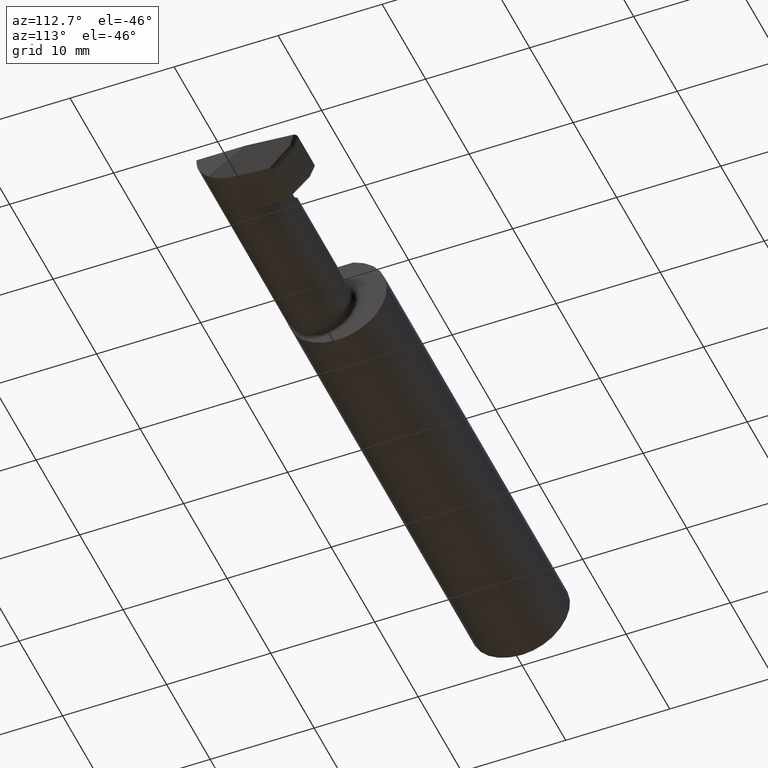
[diagram: clean part render]
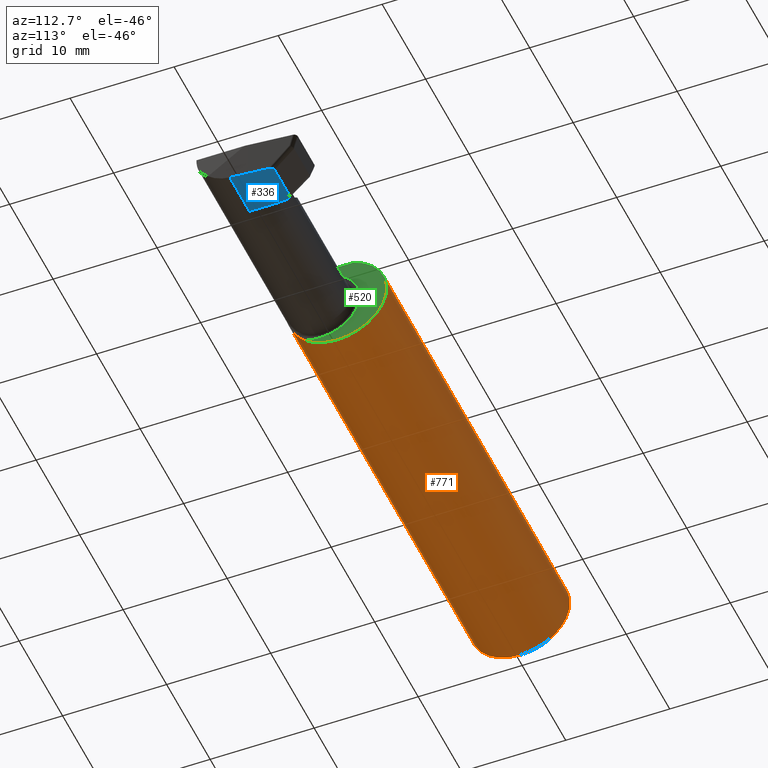
[diagram: same view with three faces highlighted in distinct colors, each labeled with its STEP entity id]
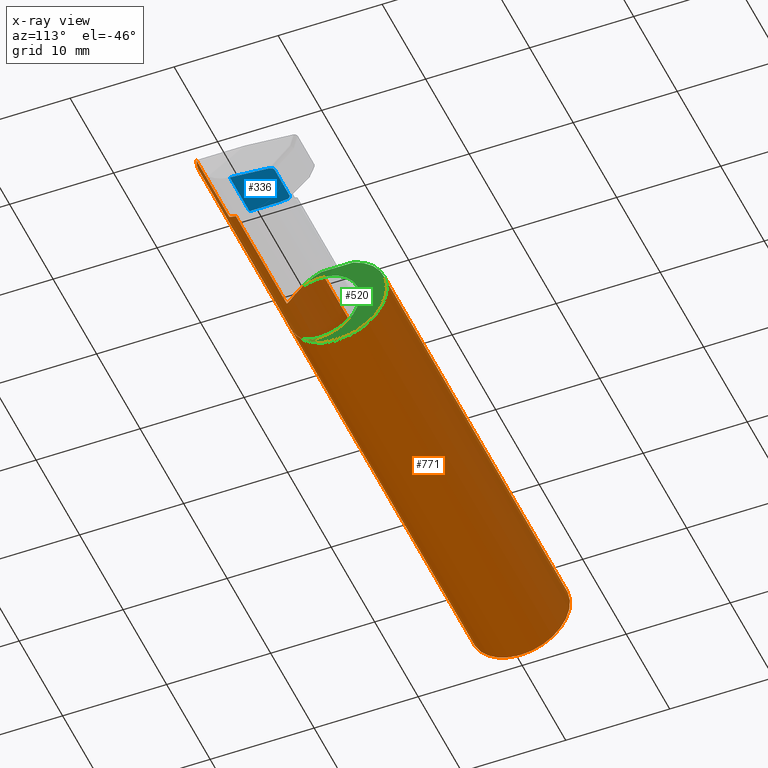
[diagram: x-ray of the same camera — body ghosted, the three highlighted faces saturated]
A machine part, auxiliary view with three faces highlighted in distinct colors.
The next image is the same camera in x-ray (body ghosted, the three faces saturated) — at least one of them is partly hidden behind the body in this view.
Their STEP definitions:

[orange] entity #771 — the highlighted cylindrical surface (partial cylindrical patch) has radius 4.7587 mm, axis along (-1, -0, -0).
#4 = DIRECTION ( 'NONE',  ( -1.000000000000000000, -0.000000000000000000, -0.000000000000000000 ) ) ;
#7 = CARTESIAN_POINT ( 'NONE',  ( 1.985000000000000320, -0.1816805279265493456, -0.04574066322573741572 ) ) ;
#15 = CARTESIAN_POINT ( 'NONE',  ( 1.687714244929360730, -0.1775741566219413425, -0.05988189962716809756 ) ) ;
#17 = VERTEX_POINT ( 'NONE', #591 ) ;
#18 = DIRECTION ( 'NONE',  ( 0.000000000000000000, 0.000000000000000000, -1.000000000000000000 ) ) ;
#20 = DIRECTION ( 'NONE',  ( 1.000000000000000000, 0.000000000000000000, 0.000000000000000000 ) ) ;
#22 = ORIENTED_EDGE ( 'NONE', *, *, #858, .T. ) ;
#50 = CARTESIAN_POINT ( 'NONE',  ( 1.695736562170379491, -0.1815122776378731151, 0.04641090218153610947 ) ) ;
#60 = EDGE_CURVE ( 'NONE', #551, #63, #332, .T. ) ;
#61 = EDGE_CURVE ( 'NONE', #163, #865, #557, .T. ) ;
#63 = VERTEX_POINT ( 'NONE', #937 ) ;
#69 = ORIENTED_EDGE ( 'NONE', *, *, #515, .F. ) ;
#74 = CARTESIAN_POINT ( 'NONE',  ( 2.200000000000000178, -0.1873499999999999888, -3.979970649922726459E-17 ) ) ;
#78 = CARTESIAN_POINT ( 'NONE',  ( 0.01499999999999970281, 0.000000000000000000, 0.000000000000000000 ) ) ;
#86 = DIRECTION ( 'NONE',  ( 0.000000000000000000, 0.000000000000000000, 1.000000000000000000 ) ) ;
#107 = DIRECTION ( 'NONE',  ( 1.000000000000000000, -0.000000000000000000, -0.000000000000000000 ) ) ;
#113 = CARTESIAN_POINT ( 'NONE',  ( 1.680165066739708779, -0.1674210122097407327, 0.08457025362359742171 ) ) ;
#118 = CARTESIAN_POINT ( 'NONE',  ( 1.687714394919973104, -0.1775724809961185535, 0.05988543762226174877 ) ) ;
#126 = CARTESIAN_POINT ( 'NONE',  ( 1.697999999999999954, -0.1816805279265493456, 0.04574066322573741572 ) ) ;
#128 = CARTESIAN_POINT ( 'NONE',  ( 1.673000000000000265, 0.000000000000000000, 0.000000000000000000 ) ) ;
#145 = ORIENTED_EDGE ( 'NONE', *, *, #705, .T. ) ;
#162 = EDGE_CURVE ( 'NONE', #17, #838, #464, .T. ) ;
#163 = VERTEX_POINT ( 'NONE', #405 ) ;
#164 = CARTESIAN_POINT ( 'NONE',  ( 1.694060832777569248, -0.1811109074190623835, -0.04795319073302588969 ) ) ;
#167 = VECTOR ( 'NONE', #706, 39.37007874015748143 ) ;
#168 = EDGE_CURVE ( 'NONE', #208, #551, #747, .T. ) ;
#179 = LINE ( 'NONE', #259, #511 ) ;
#184 = DIRECTION ( 'NONE',  ( 0.000000000000000000, 0.000000000000000000, -1.000000000000000000 ) ) ;
#190 = DIRECTION ( 'NONE',  ( 0.000000000000000000, 0.000000000000000000, -1.000000000000000000 ) ) ;
#197 = AXIS2_PLACEMENT_3D ( 'NONE', #276, #667, #184 ) ;
#208 = VERTEX_POINT ( 'NONE', #895 ) ;
#209 = CARTESIAN_POINT ( 'NONE',  ( 2.155609336774261919, -0.1816805279265492068, 0.04574066322573761695 ) ) ;
#216 = CIRCLE ( 'NONE', #314, 0.1873499999999999888 ) ;
#234 = CARTESIAN_POINT ( 'NONE',  ( 2.500000000000000000, -0.1873499999999999610, -3.979970649922724610E-17 ) ) ;
#259 = CARTESIAN_POINT ( 'NONE',  ( 1.985000000000000320, -0.1816805279265493456, 0.04574066322573741572 ) ) ;
#262 = CARTESIAN_POINT ( 'NONE',  ( 1.686243155597560328, -0.1761103983034254528, -0.06406878988066036507 ) ) ;
#271 = CARTESIAN_POINT ( 'NONE',  ( 1.686238439611428275, -0.1761054551189536743, 0.06408236932159687427 ) ) ;
#276 = CARTESIAN_POINT ( 'NONE',  ( 1.673000000000000265, 0.000000000000000000, 0.000000000000000000 ) ) ;
#304 = VERTEX_POINT ( 'NONE', #74 ) ;
#314 = AXIS2_PLACEMENT_3D ( 'NONE', #78, #107, #954 ) ;
#318 = DIRECTION ( 'NONE',  ( 0.000000000000000000, 0.000000000000000000, -1.000000000000000000 ) ) ;
#319 = VERTEX_POINT ( 'NONE', #532 ) ;
#326 = CARTESIAN_POINT ( 'NONE',  ( 1.673000000000000265, 0.06039039658753697637, 0.1773499999999999799 ) ) ;
#329 = CARTESIAN_POINT ( 'NONE',  ( 1.695757828336039941, -0.1815159194173288082, -0.04639655467506109687 ) ) ;
#332 = LINE ( 'NONE', #7, #349 ) ;
#334 = CARTESIAN_POINT ( 'NONE',  ( 1.673000000000000265, -0.1358364408402822077, -0.1293653927267006953 ) ) ;
#344 = CARTESIAN_POINT ( 'NONE',  ( 1.693346106735897694, -0.1808597239496785580, 0.04889540865154970439 ) ) ;
#346 = AXIS2_PLACEMENT_3D ( 'NONE', #714, #568, #86 ) ;
#349 = VECTOR ( 'NONE', #864, 39.37007874015748143 ) ;
#351 = CARTESIAN_POINT ( 'NONE',  ( 1.673507463316945554, -0.1420253514571687414, 0.1225297815952122588 ) ) ;
#355 = VERTEX_POINT ( 'NONE', #711 ) ;
#356 = CARTESIAN_POINT ( 'NONE',  ( 2.200000000000000178, -0.1873451360457484560, 0.001349999999999087824 ) ) ;
#381 = VERTEX_POINT ( 'NONE', #959 ) ;
#384 = VERTEX_POINT ( 'NONE', #940 ) ;
#402 = CARTESIAN_POINT ( 'NONE',  ( 0.01499999999999970281, 0.000000000000000000, 0.000000000000000000 ) ) ;
#405 = CARTESIAN_POINT ( 'NONE',  ( 0.01499999999999970281, 0.06039039658753697637, 0.1773499999999999799 ) ) ;
#417 = CARTESIAN_POINT ( 'NONE',  ( 1.676681773380125362, -0.1584047100801144747, -0.1004548108586795913 ) ) ;
#426 = CARTESIAN_POINT ( 'NONE',  ( 1.676710439827054033, -0.1584902558649207982, 0.1003133187725623182 ) ) ;
#433 = ORIENTED_EDGE ( 'NONE', *, *, #162, .T. ) ;
#438 = CARTESIAN_POINT ( 'NONE',  ( 1.696803717416865309, -0.1816805279265492623, 0.04574066322573741572 ) ) ;
#441 = AXIS2_PLACEMENT_3D ( 'NONE', #684, #1004, #772 ) ;
#444 = ORIENTED_EDGE ( 'NONE', *, *, #60, .F. ) ;
#445 = CARTESIAN_POINT ( 'NONE',  ( 2.170144162329409543, -0.1853398774911412805, 0.03120583767058981300 ) ) ;
#457 = CARTESIAN_POINT ( 'NONE',  ( 1.673000000000000265, -0.1290791507268553850, -0.1357887894770173631 ) ) ;
#464 = LINE ( 'NONE', #690, #692 ) ;
#474 = ORIENTED_EDGE ( 'NONE', *, *, #999, .T. ) ;
#475 = CARTESIAN_POINT ( 'NONE',  ( 1.696817590302756917, -0.1816805279265500950, -0.04574066322574464605 ) ) ;
#510 = AXIS2_PLACEMENT_3D ( 'NONE', #128, #903, #190 ) ;
#511 = VECTOR ( 'NONE', #702, 39.37007874015748143 ) ;
#515 = EDGE_CURVE ( 'NONE', #17, #319, #945, .T. ) ;
#527 = EDGE_CURVE ( 'NONE', #567, #355, #861, .T. ) ;
#532 = CARTESIAN_POINT ( 'NONE',  ( 1.673000000000000265, -0.1290791507268553850, 0.1357887894770173631 ) ) ;
#546 = DIRECTION ( 'NONE',  ( -1.000000000000000000, -0.000000000000000000, -0.000000000000000000 ) ) ;
#551 = VERTEX_POINT ( 'NONE', #972 ) ;
#552 = CARTESIAN_POINT ( 'NONE',  ( 1.691477950225052984, -0.1800855208038182886, -0.05170170159514017594 ) ) ;
#553 = CARTESIAN_POINT ( 'NONE',  ( 2.500000000000000000, 0.06039039658753697637, 0.1773499999999999799 ) ) ;
#557 = LINE ( 'NONE', #553, #167 ) ;
#559 = CARTESIAN_POINT ( 'NONE',  ( 1.673000000000000265, -0.1290791507268553850, -0.1357887894770173631 ) ) ;
#565 = AXIS2_PLACEMENT_3D ( 'NONE', #712, #20, #318 ) ;
#567 = VERTEX_POINT ( 'NONE', #832 ) ;
#568 = DIRECTION ( 'NONE',  ( -1.000000000000000000, -0.000000000000000000, -0.000000000000000000 ) ) ;
#578 = CARTESIAN_POINT ( 'NONE',  ( 1.672999999999999821, -0.1358297317783274394, 0.1293717702783574175 ) ) ;
#591 = CARTESIAN_POINT ( 'NONE',  ( 1.673000000000000265, -0.06039039658755174234, 0.1773499999999999799 ) ) ;
#594 = CARTESIAN_POINT ( 'NONE',  ( 2.185011993843769318, -0.1872371331974334585, 0.01633800615622983676 ) ) ;
#613 = EDGE_LOOP ( 'NONE', ( #444, #683, #145, #792, #904, #992, #474, #69, #433, #804, #725, #685, #756, #22 ) ) ;
#627 = CARTESIAN_POINT ( 'NONE',  ( 1.690471878265903616, -0.1794901087543954721, -0.05373940346778428162 ) ) ;
#636 = CARTESIAN_POINT ( 'NONE',  ( 1.675343370590518965, -0.1532864254495101830, -0.1081069623110098021 ) ) ;
#640 = CARTESIAN_POINT ( 'NONE',  ( 1.673508120371015595, -0.1420153276512569340, -0.1225377094583886411 ) ) ;
#656 = VERTEX_POINT ( 'NONE', #457 ) ;
#664 = CIRCLE ( 'NONE', #197, 0.1873499999999999888 ) ;
#667 = DIRECTION ( 'NONE',  ( 1.000000000000000000, 0.000000000000000000, 0.000000000000000000 ) ) ;
#683 = ORIENTED_EDGE ( 'NONE', *, *, #168, .F. ) ;
#684 = CARTESIAN_POINT ( 'NONE',  ( 2.500000000000000000, 0.000000000000000000, 0.000000000000000000 ) ) ;
#685 = ORIENTED_EDGE ( 'NONE', *, *, #61, .T. ) ;
#690 = CARTESIAN_POINT ( 'NONE',  ( 2.500000000000000000, -0.06039039658753697637, 0.1773499999999999799 ) ) ;
#692 = VECTOR ( 'NONE', #546, 39.37007874015748143 ) ;
#694 = LINE ( 'NONE', #234, #752 ) ;
#702 = DIRECTION ( 'NONE',  ( 1.000000000000000000, 0.000000000000000000, 0.000000000000000000 ) ) ;
#705 = EDGE_CURVE ( 'NONE', #208, #304, #694, .T. ) ;
#706 = DIRECTION ( 'NONE',  ( 1.000000000000000000, 0.000000000000000000, 0.000000000000000000 ) ) ;
#708 = DIRECTION ( 'NONE',  ( 1.000000000000000000, -0.000000000000000000, -0.000000000000000000 ) ) ;
#711 = CARTESIAN_POINT ( 'NONE',  ( 2.155609336774261919, -0.1816805279265492068, 0.04574066322573761695 ) ) ;
#712 = CARTESIAN_POINT ( 'NONE',  ( 2.500000000000000000, 0.000000000000000000, 0.000000000000000000 ) ) ;
#714 = CARTESIAN_POINT ( 'NONE',  ( 2.200000000000000178, 0.000000000000000000, 0.000000000000000000 ) ) ;
#722 = CARTESIAN_POINT ( 'NONE',  ( 1.680157939458079452, -0.1674139084628467333, -0.08459198811596618794 ) ) ;
#725 = ORIENTED_EDGE ( 'NONE', *, *, #863, .T. ) ;
#730 = CARTESIAN_POINT ( 'NONE',  ( 1.675356402887169471, -0.1533523090637234909, 0.1080176704948173499 ) ) ;
#731 = CIRCLE ( 'NONE', #981, 0.1873499999999999888 ) ;
#737 = CARTESIAN_POINT ( 'NONE',  ( 1.690456448377851917, -0.1794802708211542253, 0.05377185297669066777 ) ) ;
#747 = CIRCLE ( 'NONE', #565, 0.1873499999999999888 ) ;
#752 = VECTOR ( 'NONE', #4, 39.37007874015748143 ) ;
#756 = ORIENTED_EDGE ( 'NONE', *, *, #952, .F. ) ;
#767 = CYLINDRICAL_SURFACE ( 'NONE', #441, 0.1873499999999999888 ) ;
#771 = ADVANCED_FACE ( 'NONE', ( #919 ), #767, .T. ) ;
#772 = DIRECTION ( 'NONE',  ( 0.000000000000000000, 0.000000000000000000, 1.000000000000000000 ) ) ;
#775 = EDGE_CURVE ( 'NONE', #838, #384, #216, .T. ) ;
#792 = ORIENTED_EDGE ( 'NONE', *, *, #807, .T. ) ;
#793 = CARTESIAN_POINT ( 'NONE',  ( 1.697999999999999954, -0.1816805279265493456, -0.04574066322573741572 ) ) ;
#800 = CARTESIAN_POINT ( 'NONE',  ( 0.01499999999999283677, -0.06039039658755173540, 0.1773499999999999799 ) ) ;
#804 = ORIENTED_EDGE ( 'NONE', *, *, #775, .T. ) ;
#806 = CARTESIAN_POINT ( 'NONE',  ( 1.694038611304518493, -0.1811041330649479641, 0.04797886786269605491 ) ) ;
#807 = EDGE_CURVE ( 'NONE', #304, #567, #965, .T. ) ;
#823 = B_SPLINE_CURVE_WITH_KNOTS ( 'NONE', 3,
 ( #126, #438, #50, #806, #344, #893, #737, #118, #271, #971, #113, #426, #730, #351, #578, #898 ),
 .UNSPECIFIED., .F., .F.,
 ( 4, 2, 2, 2, 2, 2, 2, 4 ),
 ( 0.000000000000000000, 8.953925068333261036E-05, 0.0001790785013666652207, 0.0003581570027333422050, 0.0007163140054666949268, 0.001432628010933400262, 0.002148942016400105706, 0.002865256021866811366 ),
 .UNSPECIFIED. ) ;
#832 = CARTESIAN_POINT ( 'NONE',  ( 2.200000000000000178, -0.1873451360457484560, 0.001349999999999087824 ) ) ;
#838 = VERTEX_POINT ( 'NONE', #800 ) ;
#846 = EDGE_CURVE ( 'NONE', #381, #355, #179, .T. ) ;
#858 = EDGE_CURVE ( 'NONE', #656, #63, #910, .T. ) ;
#861 =( BOUNDED_CURVE ( )  B_SPLINE_CURVE ( 3, ( #356, #594, #445, #209 ),
 .UNSPECIFIED., .F., .T. ) 
 B_SPLINE_CURVE_WITH_KNOTS ( ( 4, 4 ),
 ( 4.719594807355369959, 4.959027430676237636 ),
 .UNSPECIFIED. ) 
 CURVE ( )  GEOMETRIC_REPRESENTATION_ITEM ( )  RATIONAL_B_SPLINE_CURVE ( ( 1.000000000000000000, 0.9952283712403751093, 0.9952283712403751093, 1.000000000000000000 ) ) 
 REPRESENTATION_ITEM ( '' )  );
#863 = EDGE_CURVE ( 'NONE', #384, #163, #731, .T. ) ;
#864 = DIRECTION ( 'NONE',  ( -1.000000000000000000, -0.000000000000000000, -0.000000000000000000 ) ) ;
#865 = VERTEX_POINT ( 'NONE', #326 ) ;
#866 = CARTESIAN_POINT ( 'NONE',  ( 1.693366350430951517, -0.1808668743673179924, -0.04886876118085552168 ) ) ;
#893 = CARTESIAN_POINT ( 'NONE',  ( 1.691447111503739942, -0.1800702390342964754, 0.05175562241491477034 ) ) ;
#895 = CARTESIAN_POINT ( 'NONE',  ( 2.500000000000000000, -0.1873500000000000165, -3.979970649922726459E-17 ) ) ;
#898 = CARTESIAN_POINT ( 'NONE',  ( 1.673000000000000265, -0.1290791507268553850, 0.1357887894770173631 ) ) ;
#903 = DIRECTION ( 'NONE',  ( 1.000000000000000000, 0.000000000000000000, 0.000000000000000000 ) ) ;
#904 = ORIENTED_EDGE ( 'NONE', *, *, #527, .T. ) ;
#910 = B_SPLINE_CURVE_WITH_KNOTS ( 'NONE', 3,
 ( #559, #334, #640, #636, #417, #722, #958, #262, #15, #627, #552, #866, #164, #329, #475, #793 ),
 .UNSPECIFIED., .F., .F.,
 ( 4, 2, 2, 2, 2, 2, 2, 4 ),
 ( 0.000000000000000000, 0.0007010516798009736039, 0.001402103359601947208, 0.002103155039402920812, 0.002453680879303407614, 0.002628943799253651015, 0.002716575259228778353, 0.002804206719203905691 ),
 .UNSPECIFIED. ) ;
#919 = FACE_OUTER_BOUND ( 'NONE', #613, .T. ) ;
#937 = CARTESIAN_POINT ( 'NONE',  ( 1.697999999999999954, -0.1816805279265493456, -0.04574066322573741572 ) ) ;
#940 = CARTESIAN_POINT ( 'NONE',  ( 0.01499999999999970281, 0.000000000000000000, -0.1873499999999999888 ) ) ;
#945 = CIRCLE ( 'NONE', #510, 0.1873499999999999888 ) ;
#952 = EDGE_CURVE ( 'NONE', #656, #865, #664, .T. ) ;
#954 = DIRECTION ( 'NONE',  ( 0.000000000000000000, 0.000000000000000000, -1.000000000000000000 ) ) ;
#958 = CARTESIAN_POINT ( 'NONE',  ( 1.682242766001950773, -0.1712683263405276324, -0.07645797409013632695 ) ) ;
#959 = CARTESIAN_POINT ( 'NONE',  ( 1.697999999999999954, -0.1816805279265493456, 0.04574066322573741572 ) ) ;
#965 = CIRCLE ( 'NONE', #346, 0.1873499999999999888 ) ;
#971 = CARTESIAN_POINT ( 'NONE',  ( 1.682239251373390809, -0.1712625384217544566, 0.07647091574860639951 ) ) ;
#972 = CARTESIAN_POINT ( 'NONE',  ( 2.500000000000000000, -0.1816805279265493456, -0.04574066322573741572 ) ) ;
#981 = AXIS2_PLACEMENT_3D ( 'NONE', #402, #708, #18 ) ;
#992 = ORIENTED_EDGE ( 'NONE', *, *, #846, .F. ) ;
#999 = EDGE_CURVE ( 'NONE', #381, #319, #823, .T. ) ;
#1004 = DIRECTION ( 'NONE',  ( -1.000000000000000000, -0.000000000000000000, -0.000000000000000000 ) ) ;

[blue] entity #336 — the highlighted planar face has unit normal (0, 0, 1).
#1 = EDGE_LOOP ( 'NONE', ( #652, #953, #44, #537, #942, #871, #580 ) ) ;
#11 = FACE_OUTER_BOUND ( 'NONE', #1, .T. ) ;
#41 = VECTOR ( 'NONE', #159, 39.37007874015748854 ) ;
#44 = ORIENTED_EDGE ( 'NONE', *, *, #631, .T. ) ;
#53 = EDGE_CURVE ( 'NONE', #530, #741, #624, .T. ) ;
#67 = CARTESIAN_POINT ( 'NONE',  ( 2.328752348163907637, 0.09359112549695697281, -0.1249999999999999861 ) ) ;
#68 = DIRECTION ( 'NONE',  ( 0.000000000000000000, 0.000000000000000000, 1.000000000000000000 ) ) ;
#82 = CARTESIAN_POINT ( 'NONE',  ( 2.303416388597084197, -0.04815116256726045818, -0.1249999999999999861 ) ) ;
#111 = AXIS2_PLACEMENT_3D ( 'NONE', #383, #68, #315 ) ;
#132 = VECTOR ( 'NONE', #389, 39.37007874015748854 ) ;
#142 = VERTEX_POINT ( 'NONE', #469 ) ;
#155 = DIRECTION ( 'NONE',  ( -1.000000000000000000, -0.000000000000000000, -0.000000000000000000 ) ) ;
#159 = DIRECTION ( 'NONE',  ( 0.08715574274765251761, 0.9961946980917459893, -0.000000000000000000 ) ) ;
#194 = CARTESIAN_POINT ( 'NONE',  ( 2.477519533400941221, 0.07550355366830234505, -0.1249999999999999861 ) ) ;
#199 = CARTESIAN_POINT ( 'NONE',  ( 2.489842622564257368, -0.06535000000000003306, -0.1249999999999999861 ) ) ;
#202 = EDGE_CURVE ( 'NONE', #922, #660, #672, .T. ) ;
#211 = CARTESIAN_POINT ( 'NONE',  ( 2.328752348163907637, 0.09359112549695697281, -0.1249999999999999861 ) ) ;
#217 = CARTESIAN_POINT ( 'NONE',  ( 2.489919779257633081, -0.06623190504079595753, -0.1249999999999999861 ) ) ;
#254 = CARTESIAN_POINT ( 'NONE',  ( 2.311504986094757630, 0.04430192988713683305, -0.1249999999999999861 ) ) ;
#269 = EDGE_CURVE ( 'NONE', #986, #741, #768, .T. ) ;
#315 = DIRECTION ( 'NONE',  ( 1.000000000000000000, 0.000000000000000000, -0.000000000000000000 ) ) ;
#336 = ADVANCED_FACE ( 'NONE', ( #11 ), #680, .F. ) ;
#360 = CARTESIAN_POINT ( 'NONE',  ( 2.311504986094757630, 0.04430192988713683305, -0.1249999999999999861 ) ) ;
#383 = CARTESIAN_POINT ( 'NONE',  ( 2.500000000000000000, -0.06535000000000003306, -0.1249999999999999861 ) ) ;
#386 = LINE ( 'NONE', #217, #132 ) ;
#389 = DIRECTION ( 'NONE',  ( 0.08715574274765187923, -0.9961946980917459893, 0.000000000000000000 ) ) ;
#399 =( BOUNDED_CURVE ( )  B_SPLINE_CURVE ( 3, ( #976, #649, #968, #194 ),
 .UNSPECIFIED., .F., .T. ) 
 B_SPLINE_CURVE_WITH_KNOTS ( ( 4, 4 ),
 ( 3.116316507558948956, 4.539230727920552155 ),
 .UNSPECIFIED. ) 
 CURVE ( )  GEOMETRIC_REPRESENTATION_ITEM ( )  RATIONAL_B_SPLINE_CURVE ( ( 1.000000000000000000, 0.8382741850914522397, 0.8382741850914522397, 1.000000000000000000 ) ) 
 REPRESENTATION_ITEM ( '' )  );
#432 = CARTESIAN_POINT ( 'NONE',  ( 2.314234774459210442, 0.07550355366830230341, -0.1249999999999999861 ) ) ;
#458 = CARTESIAN_POINT ( 'NONE',  ( 2.500000000000000000, -0.06535000000000003306, -0.1249999999999999861 ) ) ;
#469 = CARTESIAN_POINT ( 'NONE',  ( 2.477519533400941221, 0.07550355366830234505, -0.1249999999999999861 ) ) ;
#530 = VERTEX_POINT ( 'NONE', #360 ) ;
#531 = DIRECTION ( 'NONE',  ( 1.000000000000000000, -3.062614041842368319E-16, 0.000000000000000000 ) ) ;
#537 = ORIENTED_EDGE ( 'NONE', *, *, #269, .T. ) ;
#580 = ORIENTED_EDGE ( 'NONE', *, *, #202, .T. ) ;
#581 = CARTESIAN_POINT ( 'NONE',  ( 2.314234774459210442, 0.07550355366830230341, -0.1249999999999999861 ) ) ;
#596 = EDGE_CURVE ( 'NONE', #948, #142, #399, .T. ) ;
#620 = CARTESIAN_POINT ( 'NONE',  ( 2.500000000000000000, 0.09359112549695691730, -0.1249999999999999861 ) ) ;
#624 = LINE ( 'NONE', #254, #835 ) ;
#631 = EDGE_CURVE ( 'NONE', #142, #986, #386, .T. ) ;
#649 = CARTESIAN_POINT ( 'NONE',  ( 2.470793525650871292, 0.09359112549695686178, -0.1250000000000000000 ) ) ;
#652 = ORIENTED_EDGE ( 'NONE', *, *, #658, .T. ) ;
#655 = CARTESIAN_POINT ( 'NONE',  ( 2.320960782209280815, 0.09359112549695713934, -0.1249999999999999861 ) ) ;
#658 = EDGE_CURVE ( 'NONE', #660, #948, #924, .T. ) ;
#660 = VERTEX_POINT ( 'NONE', #67 ) ;
#661 = CARTESIAN_POINT ( 'NONE',  ( 2.463001959696243581, 0.09359112549695693117, -0.1249999999999999861 ) ) ;
#672 =( BOUNDED_CURVE ( )  B_SPLINE_CURVE ( 3, ( #432, #745, #655, #211 ),
 .UNSPECIFIED., .F., .T. ) 
 B_SPLINE_CURVE_WITH_KNOTS ( ( 4, 4 ),
 ( 4.885547232848824528, 6.308461453210448155 ),
 .UNSPECIFIED. ) 
 CURVE ( )  GEOMETRIC_REPRESENTATION_ITEM ( )  RATIONAL_B_SPLINE_CURVE ( ( 1.000000000000000000, 0.8382741850914477988, 0.8382741850914477988, 1.000000000000000000 ) ) 
 REPRESENTATION_ITEM ( '' )  );
#680 = PLANE ( 'NONE',  #111 ) ;
#709 = EDGE_CURVE ( 'NONE', #530, #922, #860, .T. ) ;
#741 = VERTEX_POINT ( 'NONE', #839 ) ;
#745 = CARTESIAN_POINT ( 'NONE',  ( 2.315187979800518381, 0.08639874057472095303, -0.1249999999999999861 ) ) ;
#768 = LINE ( 'NONE', #458, #801 ) ;
#790 = DIRECTION ( 'NONE',  ( 0.000000000000000000, -1.000000000000000000, 0.000000000000000000 ) ) ;
#801 = VECTOR ( 'NONE', #155, 39.37007874015748143 ) ;
#835 = VECTOR ( 'NONE', #790, 39.37007874015748143 ) ;
#839 = CARTESIAN_POINT ( 'NONE',  ( 2.311504986094757630, -0.06535000000000003306, -0.1249999999999999861 ) ) ;
#860 = LINE ( 'NONE', #82, #41 ) ;
#869 = VECTOR ( 'NONE', #531, 39.37007874015748143 ) ;
#871 = ORIENTED_EDGE ( 'NONE', *, *, #709, .T. ) ;
#922 = VERTEX_POINT ( 'NONE', #581 ) ;
#924 = LINE ( 'NONE', #620, #869 ) ;
#942 = ORIENTED_EDGE ( 'NONE', *, *, #53, .F. ) ;
#948 = VERTEX_POINT ( 'NONE', #661 ) ;
#953 = ORIENTED_EDGE ( 'NONE', *, *, #596, .T. ) ;
#968 = CARTESIAN_POINT ( 'NONE',  ( 2.476566328059633282, 0.08639874057472073099, -0.1250000000000000000 ) ) ;
#976 = CARTESIAN_POINT ( 'NONE',  ( 2.463001959696243581, 0.09359112549695693117, -0.1249999999999999861 ) ) ;
#986 = VERTEX_POINT ( 'NONE', #199 ) ;

[green] entity #520 — the highlighted planar face has unit normal (1, 0, 0).
#17 = VERTEX_POINT ( 'NONE', #591 ) ;
#83 = CARTESIAN_POINT ( 'NONE',  ( 1.673000000000000265, 0.1000000000000000056, 0.1773499999999999799 ) ) ;
#106 = EDGE_LOOP ( 'NONE', ( #900, #957, #678, #990, #597, #153 ) ) ;
#123 = CARTESIAN_POINT ( 'NONE',  ( 1.673000000000000265, -0.06535000000000003306, -0.1499999999999999667 ) ) ;
#128 = CARTESIAN_POINT ( 'NONE',  ( 1.673000000000000265, 0.000000000000000000, 0.000000000000000000 ) ) ;
#153 = ORIENTED_EDGE ( 'NONE', *, *, #301, .T. ) ;
#172 = CARTESIAN_POINT ( 'NONE',  ( 1.673000000000000265, -0.06535000000000003306, 0.000000000000000000 ) ) ;
#181 = CIRCLE ( 'NONE', #884, 0.1499999999999999667 ) ;
#182 = AXIS2_PLACEMENT_3D ( 'NONE', #536, #762, #850 ) ;
#184 = DIRECTION ( 'NONE',  ( 0.000000000000000000, 0.000000000000000000, -1.000000000000000000 ) ) ;
#190 = DIRECTION ( 'NONE',  ( 0.000000000000000000, 0.000000000000000000, -1.000000000000000000 ) ) ;
#197 = AXIS2_PLACEMENT_3D ( 'NONE', #276, #667, #184 ) ;
#224 = LINE ( 'NONE', #83, #358 ) ;
#276 = CARTESIAN_POINT ( 'NONE',  ( 1.673000000000000265, 0.000000000000000000, 0.000000000000000000 ) ) ;
#301 = EDGE_CURVE ( 'NONE', #865, #17, #224, .T. ) ;
#319 = VERTEX_POINT ( 'NONE', #532 ) ;
#326 = CARTESIAN_POINT ( 'NONE',  ( 1.673000000000000265, 0.06039039658753697637, 0.1773499999999999799 ) ) ;
#358 = VECTOR ( 'NONE', #862, 39.37007874015748143 ) ;
#424 = EDGE_CURVE ( 'NONE', #1002, #558, #181, .T. ) ;
#430 = CARTESIAN_POINT ( 'NONE',  ( 1.673000000000000265, -0.06535000000000000531, 0.1499999999999999667 ) ) ;
#457 = CARTESIAN_POINT ( 'NONE',  ( 1.673000000000000265, -0.1290791507268553850, -0.1357887894770173631 ) ) ;
#497 = CIRCLE ( 'NONE', #182, 0.1499999999999999667 ) ;
#498 = EDGE_CURVE ( 'NONE', #558, #656, #950, .T. ) ;
#510 = AXIS2_PLACEMENT_3D ( 'NONE', #128, #903, #190 ) ;
#515 = EDGE_CURVE ( 'NONE', #17, #319, #945, .T. ) ;
#520 = ADVANCED_FACE ( 'NONE', ( #906 ), #828, .T. ) ;
#525 = AXIS2_PLACEMENT_3D ( 'NONE', #824, #668, #654 ) ;
#532 = CARTESIAN_POINT ( 'NONE',  ( 1.673000000000000265, -0.1290791507268553850, 0.1357887894770173631 ) ) ;
#536 = CARTESIAN_POINT ( 'NONE',  ( 1.673000000000000265, -0.06535000000000003306, 0.000000000000000000 ) ) ;
#558 = VERTEX_POINT ( 'NONE', #123 ) ;
#591 = CARTESIAN_POINT ( 'NONE',  ( 1.673000000000000265, -0.06039039658755174234, 0.1773499999999999799 ) ) ;
#597 = ORIENTED_EDGE ( 'NONE', *, *, #952, .T. ) ;
#637 = CARTESIAN_POINT ( 'NONE',  ( 1.673000000000000265, -0.06535000000000003306, 0.000000000000000000 ) ) ;
#641 = DIRECTION ( 'NONE',  ( -1.000000000000000000, -0.000000000000000000, -0.000000000000000000 ) ) ;
#654 = DIRECTION ( 'NONE',  ( 0.000000000000000000, 0.000000000000000000, -1.000000000000000000 ) ) ;
#656 = VERTEX_POINT ( 'NONE', #457 ) ;
#664 = CIRCLE ( 'NONE', #197, 0.1873499999999999888 ) ;
#667 = DIRECTION ( 'NONE',  ( 1.000000000000000000, 0.000000000000000000, 0.000000000000000000 ) ) ;
#668 = DIRECTION ( 'NONE',  ( 1.000000000000000000, 0.000000000000000000, 0.000000000000000000 ) ) ;
#678 = ORIENTED_EDGE ( 'NONE', *, *, #424, .T. ) ;
#695 = EDGE_CURVE ( 'NONE', #319, #1002, #497, .T. ) ;
#723 = DIRECTION ( 'NONE',  ( -1.000000000000000000, -0.000000000000000000, -0.000000000000000000 ) ) ;
#762 = DIRECTION ( 'NONE',  ( -1.000000000000000000, -0.000000000000000000, -0.000000000000000000 ) ) ;
#797 = DIRECTION ( 'NONE',  ( 0.000000000000000000, 0.000000000000000000, -1.000000000000000000 ) ) ;
#824 = CARTESIAN_POINT ( 'NONE',  ( 1.673000000000000265, 0.2596499999999999364, 0.000000000000000000 ) ) ;
#828 = PLANE ( 'NONE',  #525 ) ;
#841 = AXIS2_PLACEMENT_3D ( 'NONE', #172, #641, #797 ) ;
#850 = DIRECTION ( 'NONE',  ( 0.000000000000000000, 3.528636991816341026E-15, -1.000000000000000000 ) ) ;
#862 = DIRECTION ( 'NONE',  ( 0.000000000000000000, -1.000000000000000000, 0.000000000000000000 ) ) ;
#865 = VERTEX_POINT ( 'NONE', #326 ) ;
#881 = DIRECTION ( 'NONE',  ( 0.000000000000000000, 0.000000000000000000, -1.000000000000000000 ) ) ;
#884 = AXIS2_PLACEMENT_3D ( 'NONE', #637, #723, #881 ) ;
#900 = ORIENTED_EDGE ( 'NONE', *, *, #515, .T. ) ;
#903 = DIRECTION ( 'NONE',  ( 1.000000000000000000, 0.000000000000000000, 0.000000000000000000 ) ) ;
#906 = FACE_OUTER_BOUND ( 'NONE', #106, .T. ) ;
#945 = CIRCLE ( 'NONE', #510, 0.1873499999999999888 ) ;
#950 = CIRCLE ( 'NONE', #841, 0.1499999999999999667 ) ;
#952 = EDGE_CURVE ( 'NONE', #656, #865, #664, .T. ) ;
#957 = ORIENTED_EDGE ( 'NONE', *, *, #695, .T. ) ;
#990 = ORIENTED_EDGE ( 'NONE', *, *, #498, .T. ) ;
#1002 = VERTEX_POINT ( 'NONE', #430 ) ;